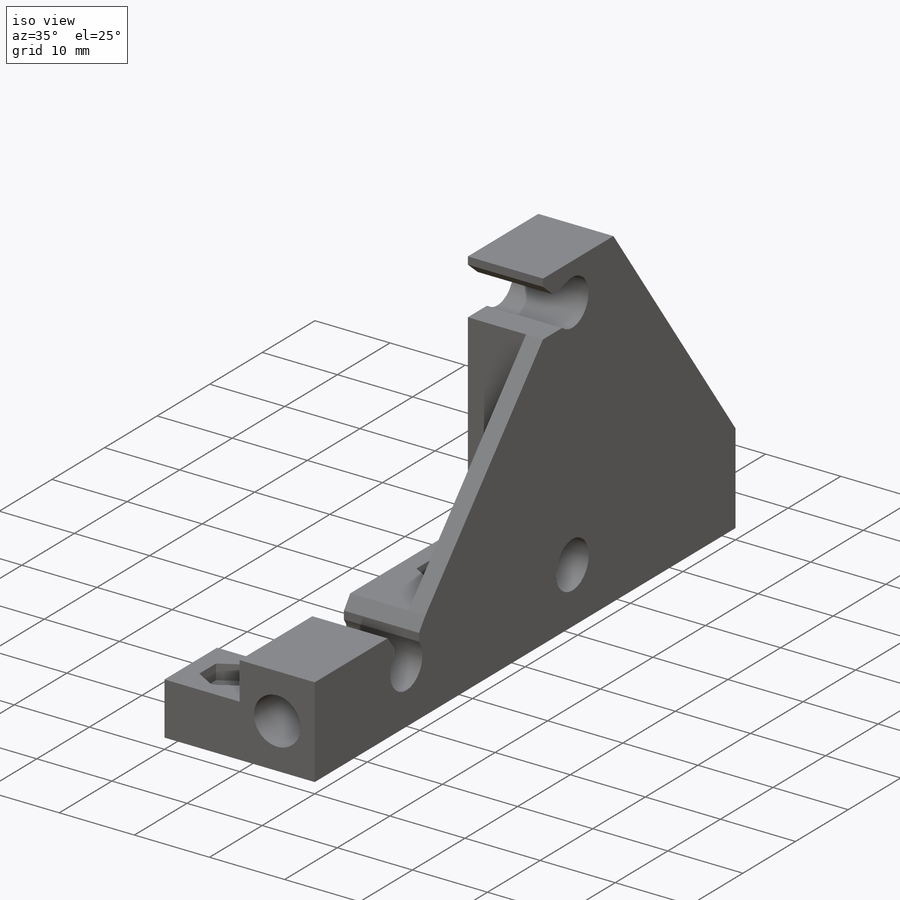
[diagram: iso view]
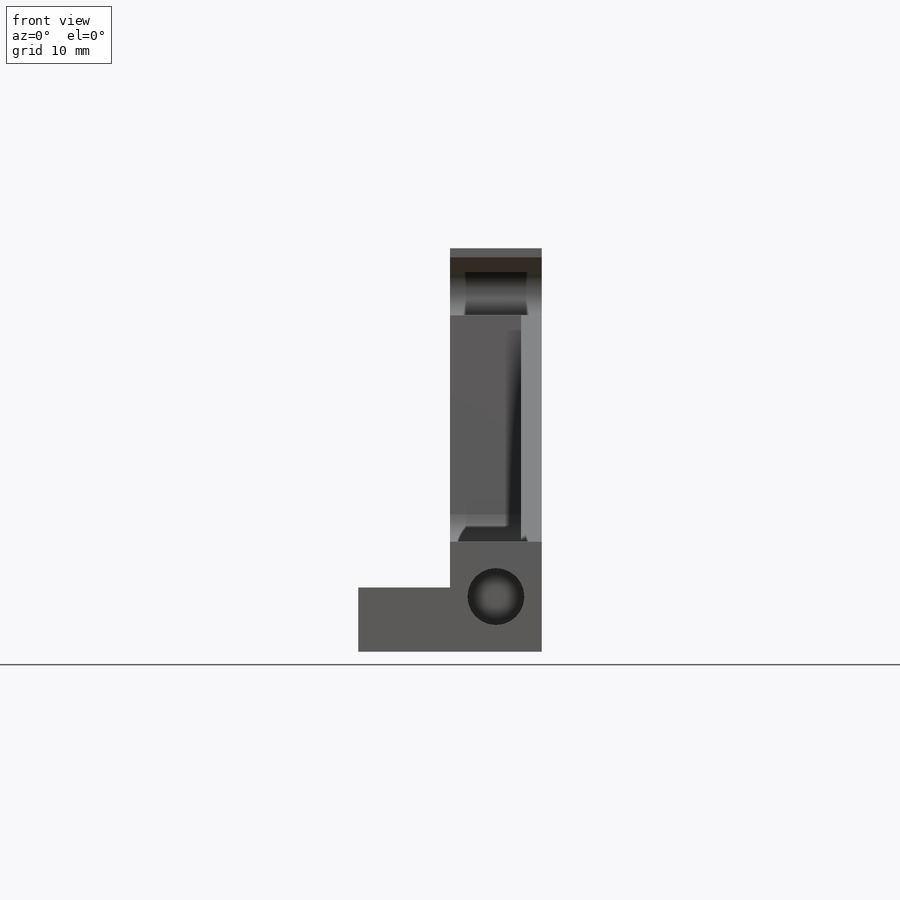
[diagram: front view]
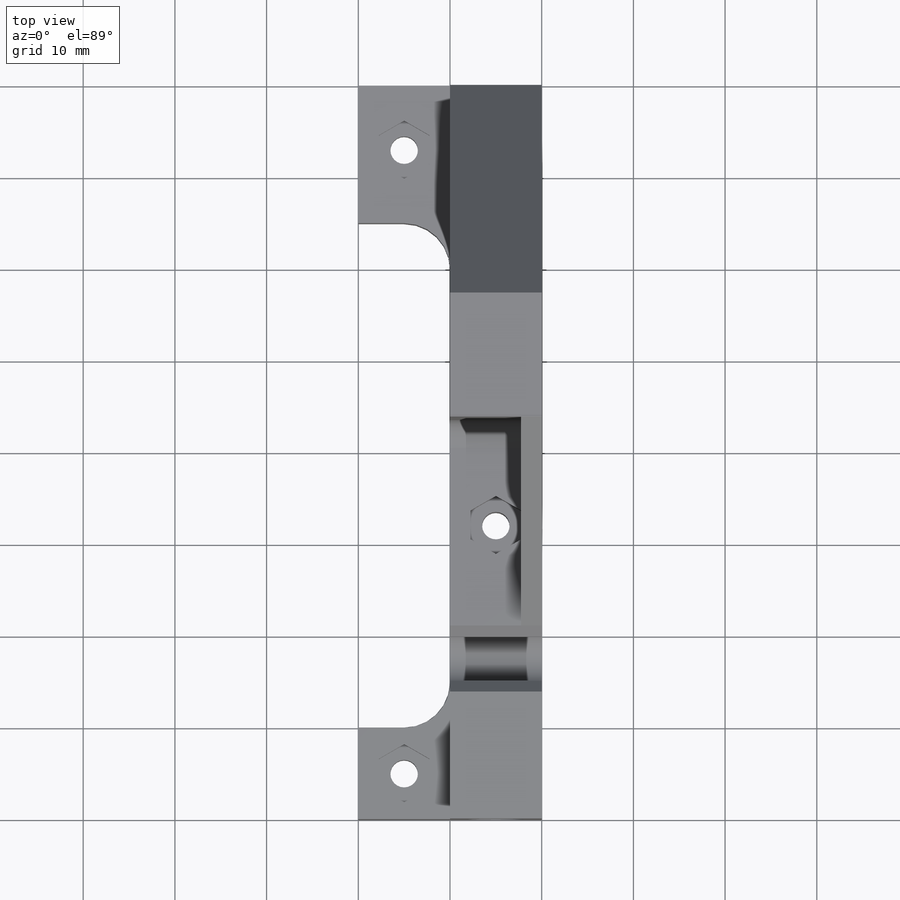
[diagram: top view]
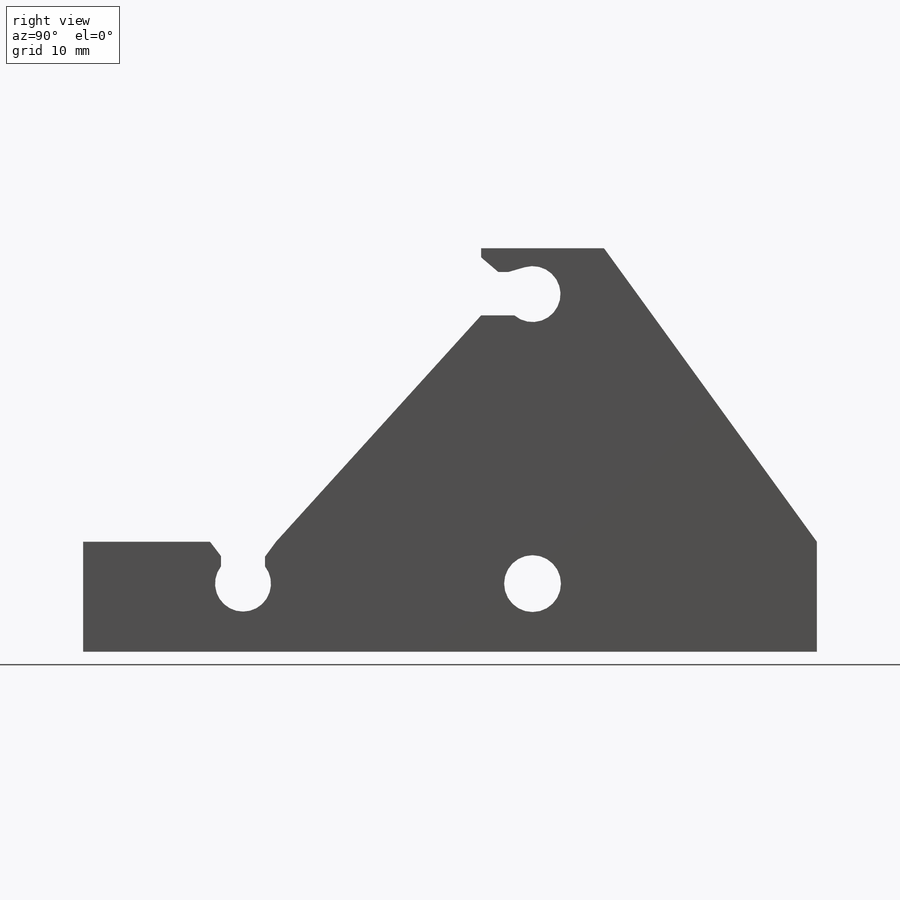
[diagram: right view]
SOLIDWORKS PART (.sldprt)
format: sldprt  version: not decoded by parser v0  size: 519,680 bytes
history: native  units: mm
features: sketch x14, cut_extrude x9, extrude x5, pattern_linear x4, plane x3, material x1, fillet x1 (+13 scaffold rows collapsed)
feature tree (50):
  scaffold x13  (default folders/planes/origin — collapsed)
  material  "Material <não especificado>"
  plane  "Plano frontal"
  plane  "Plano superior"
  plane  "Plano direito"
  sketch  "Esboço1"  dims[c1.D1=6.1mm c1.D4=6.0mm c1.D5=6.2mm c1.D2=39.0mm c1.D3=15.0mm c2.D4=6.0mm c2.D6=44.0mm c2.D7=10.0mm c2.D8=9.0mm c2.D9=40.0mm c2.D10=15.0mm c2.D11=7.43mm c2.D12=40.0mm c2.D13=12.0mm c2.D14=4.0mm c2.D15=1.6mm c2.D16=~0.988867mm c2.D17=~0.849354mm c2.D18=~2.42838mm]
  extrude  "Ressalto-extrusão1"  Depth=10mm
  sketch  "Esboço2"  dims[c1.D1=~4.643991mm c1.D2=6.2mm c2.D1=6.0mm]
  cut_extrude  "Corte-extrusão1"  Depth=20mm
  cut_extrude  "Corte-extrusão2"  [1 undecoded]
  sketch  "Esboço2<2>"  dims[D1=10.0mm]
  fillet  "Filete1"  Radius=3mm
  sketch  "Esboço3"  dims[D1=3.0mm D2=15.0mm D3=10.0mm]
  extrude  "Ressalto-extrusão2"  Depth=10mm
  sketch  "Esboço4"  dims[c1.D1=3.0mm c1.D2=2.5mm c2.D1=5.0mm c2.D2=2.0mm c2.D3=4.0mm c2.D4=10.0mm c3.D2=5.0mm c3.D3=7.0mm c4.D2=5.0mm]
  cut_extrude  "Corte-extrusão3"  Depth=20mm
  pattern_linear  "Padrão linear1"  Count1=2 Count2=1 Spacing1=68mm Spacing2=10mm
  sketch  "Esboço5"  dims[c1.D1=6.0mm c1.D2=6.1mm c2.D1=31.57mm c2.D3=3.6mm c2.D4=2.4mm c2.D5=3.0mm]
  cut_extrude  "Corte-extrusão4"  [1 undecoded]
  sketch  "Esboço6"  dims[D1=5.5mm D2=5.5mm]
  cut_extrude  "Corte-extrusão5"  Depth=5mm
  cut_extrude  "Corte-extrusão6"  [1 undecoded]
  sketch  "Esboço6<3>"  dims[D1=7.0mm]
  sketch  "Esboço7"  dims[D1=5.5mm D3=3.0mm D2=8.0mm]
  cut_extrude  "Corte-extrusão7"  Depth=4mm
  cut_extrude  "Corte-extrusão8"  [1 undecoded]
  sketch  "Esboço7<3>"
  sketch  "Esboço8"
  extrude  "Ressalto-extrusão3"  [1 undecoded]
  extrude  "Ressalto-extrusão4"  [1 undecoded]
  sketch  "Esboço8<3>"
  sketch  "Esboço9"  dims[c1.D1=~23.207682mm c2.D1=~1.578681deg c3.D1=3.0mm c3.D2=3.0mm c3.D3=10.0mm c3.D4=15.0mm]
  cut_extrude  "Corte-extrusão9"  Depth=5mm
  pattern_linear  "Filete2"  Spacing1=5mm  [1 undecoded]
  sketch  "Esboço10"  dims[c1.D1=6.1mm c1.D2=55.52mm c1.D3=~39.529008mm c2.D3=70.0deg c2.D4=~2.409302mm c3.D4=45.0deg c3.D5=5.0mm c3.D6=~9.398918mm c3.D8=4.0mm c3.D7=1.0mm]
  extrude  "Ressalto-extrusão5"  [1 undecoded]
  pattern_linear  "Filete3"  Spacing1=2mm  [1 undecoded]
  pattern_linear  "Filete4"  Spacing1=1mm Spacing2=6mm  [1 undecoded]
decode coverage: 23 of 33 modeling features carry decoded parameters
note: ~ marks probable driven/reference dimensions
note: 10 parameter values undecoded
summary: no parameter record found for 7 features
note: suppression state not decoded; provenance and decode notes live in map.json
